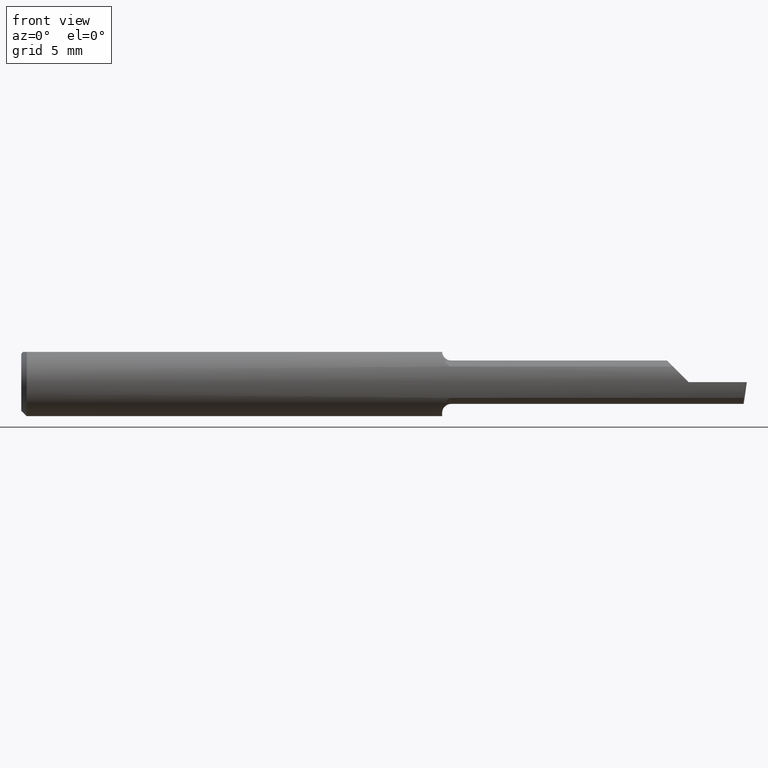
[diagram: clean part render]
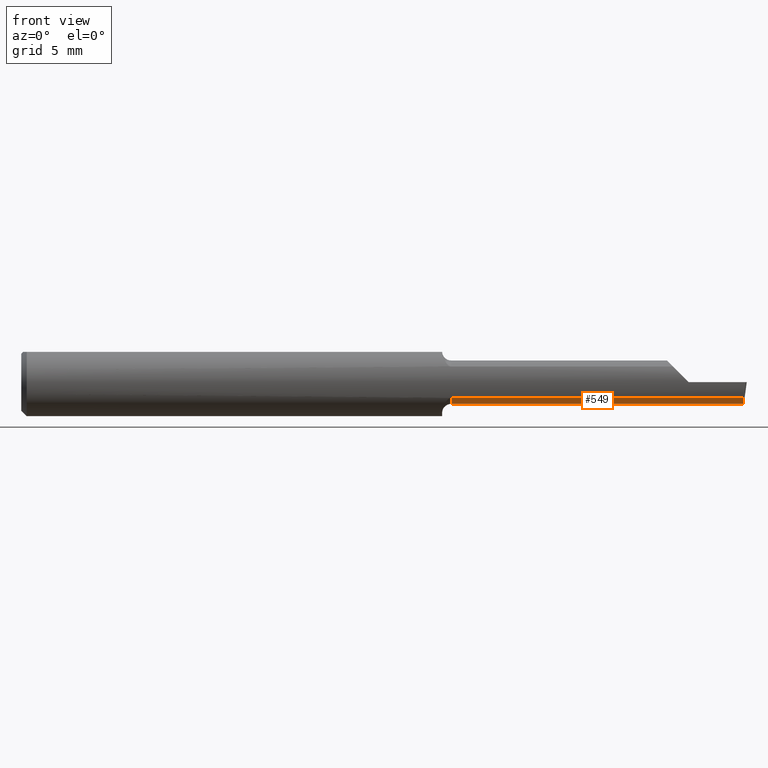
[diagram: same view with one face highlighted and labeled with its STEP entity id]
A machine part, front view. The second image highlights one B-rep face of the part: STEP entity #549.
In plain terms, the highlighted cylindrical surface (edge-blend (fillet) strip) has radius 1.5215 mm, axis along (-1, -0, -0).
Its self-contained STEP definition (entity closure, byte-faithful):
#9 = ORIENTED_EDGE ( 'NONE', *, *, #90, .F. ) ;
#38 = ORIENTED_EDGE ( 'NONE', *, *, #181, .T. ) ;
#44 = VECTOR ( 'NONE', #457, 39.37007874015748143 ) ;
#51 = VECTOR ( 'NONE', #712, 39.37007874015748143 ) ;
#90 = EDGE_CURVE ( 'NONE', #729, #519, #653, .T. ) ;
#91 = CARTESIAN_POINT ( 'NONE',  ( 1.991365359011875169, -0.08307469879518081246, -0.04312255117789283443 ) ) ;
#110 = CARTESIAN_POINT ( 'NONE',  ( 2.000000000000000000, -0.04150000000000000216, -0.05990000000000000185 ) ) ;
#151 = DIRECTION ( 'NONE',  ( 0.0000000000000000000, 0.0000000000000000000, 1.000000000000000000 ) ) ;
#162 = VERTEX_POINT ( 'NONE', #366 ) ;
#166 = CIRCLE ( 'NONE', #216, 0.05989999999999991859 ) ;
#181 = EDGE_CURVE ( 'NONE', #729, #284, #400, .T. ) ;
#210 = EDGE_LOOP ( 'NONE', ( #360, #711, #9, #38, #614 ) ) ;
#216 = AXIS2_PLACEMENT_3D ( 'NONE', #563, #629, #151 ) ;
#218 = EDGE_CURVE ( 'NONE', #162, #284, #166, .T. ) ;
#232 = VECTOR ( 'NONE', #297, 39.37007874015748143 ) ;
#284 = VERTEX_POINT ( 'NONE', #687 ) ;
#297 = DIRECTION ( 'NONE',  ( -1.000000000000000000, 5.691349986800549142E-18, -0.0000000000000000000 ) ) ;
#335 = AXIS2_PLACEMENT_3D ( 'NONE', #719, #505, #632 ) ;
#341 = LINE ( 'NONE', #110, #232 ) ;
#360 = ORIENTED_EDGE ( 'NONE', *, *, #474, .F. ) ;
#366 = CARTESIAN_POINT ( 'NONE',  ( 1.185000000000000053, -0.04149999999999999523, -0.05989999999999991859 ) ) ;
#371 = VERTEX_POINT ( 'NONE', #608 ) ;
#400 = LINE ( 'NONE', #451, #44 ) ;
#429 = CARTESIAN_POINT ( 'NONE',  ( 0.0000000000000000000, -0.04149999999999999523, -0.05989999999999996022 ) ) ;
#451 = CARTESIAN_POINT ( 'NONE',  ( 1.520000000000000240, -0.08307469879518081246, -0.04312255117789283443 ) ) ;
#457 = DIRECTION ( 'NONE',  ( -1.000000000000000000, -0.0000000000000000000, -0.0000000000000000000 ) ) ;
#462 = LINE ( 'NONE', #429, #51 ) ;
#474 = EDGE_CURVE ( 'NONE', #371, #162, #462, .T. ) ;
#480 = CYLINDRICAL_SURFACE ( 'NONE', #335, 0.05989999999999996022 ) ;
#505 = DIRECTION ( 'NONE',  ( -1.000000000000000000, -0.0000000000000000000, -0.0000000000000000000 ) ) ;
#506 = CARTESIAN_POINT ( 'NONE',  ( 1.990322576363892537, -0.07176861043311237587, -0.05402281578110738197 ) ) ;
#509 = CARTESIAN_POINT ( 'NONE',  ( 1.991365359011875169, -0.08307469879518081246, -0.04312255117789283443 ) ) ;
#519 = VERTEX_POINT ( 'NONE', #672 ) ;
#549 = ADVANCED_FACE ( 'NONE', ( #622 ), #480, .T. ) ;
#563 = CARTESIAN_POINT ( 'NONE',  ( 1.185000000000000053, -0.04150000000000000216, 0.0000000000000000000 ) ) ;
#608 = CARTESIAN_POINT ( 'NONE',  ( 1.854999999999999982, -0.04150000000000000216, -0.05990000000000000185 ) ) ;
#614 = ORIENTED_EDGE ( 'NONE', *, *, #218, .F. ) ;
#622 = FACE_OUTER_BOUND ( 'NONE', #210, .T. ) ;
#629 = DIRECTION ( 'NONE',  ( -1.000000000000000000, -0.0000000000000000000, -0.0000000000000000000 ) ) ;
#632 = DIRECTION ( 'NONE',  ( 0.0000000000000000000, 0.0000000000000000000, 1.000000000000000000 ) ) ;
#641 = CARTESIAN_POINT ( 'NONE',  ( 1.989982066092357949, -0.05720488466914006032, -0.05989999999999995328 ) ) ;
#653 =( BOUNDED_CURVE ( )  B_SPLINE_CURVE ( 3, ( #509, #506, #641, #686 ),
 .UNSPECIFIED., .F., .T. ) 
 B_SPLINE_CURVE_WITH_KNOTS ( ( 4, 4 ),
 ( 5.726109673675772171, 6.493234751459701748 ),
 .UNSPECIFIED. ) 
 CURVE ( )  GEOMETRIC_REPRESENTATION_ITEM ( )  RATIONAL_B_SPLINE_CURVE ( ( 1.000000000000000000, 0.9515582177473687064, 0.9515582177473687064, 1.000000000000000000 ) ) 
 REPRESENTATION_ITEM ( '' )  );
#672 = CARTESIAN_POINT ( 'NONE',  ( 1.990393312970557327, -0.04150000000000000216, -0.05990000000000000185 ) ) ;
#686 = CARTESIAN_POINT ( 'NONE',  ( 1.990393312970557327, -0.04150000000000000216, -0.05990000000000000185 ) ) ;
#687 = CARTESIAN_POINT ( 'NONE',  ( 1.185000000000000053, -0.08307469879518070144, -0.04312255117789289688 ) ) ;
#691 = EDGE_CURVE ( 'NONE', #519, #371, #341, .T. ) ;
#711 = ORIENTED_EDGE ( 'NONE', *, *, #691, .F. ) ;
#712 = DIRECTION ( 'NONE',  ( -1.000000000000000000, -0.0000000000000000000, -0.0000000000000000000 ) ) ;
#719 = CARTESIAN_POINT ( 'NONE',  ( 0.0000000000000000000, -0.04150000000000000216, 0.0000000000000000000 ) ) ;
#729 = VERTEX_POINT ( 'NONE', #91 ) ;